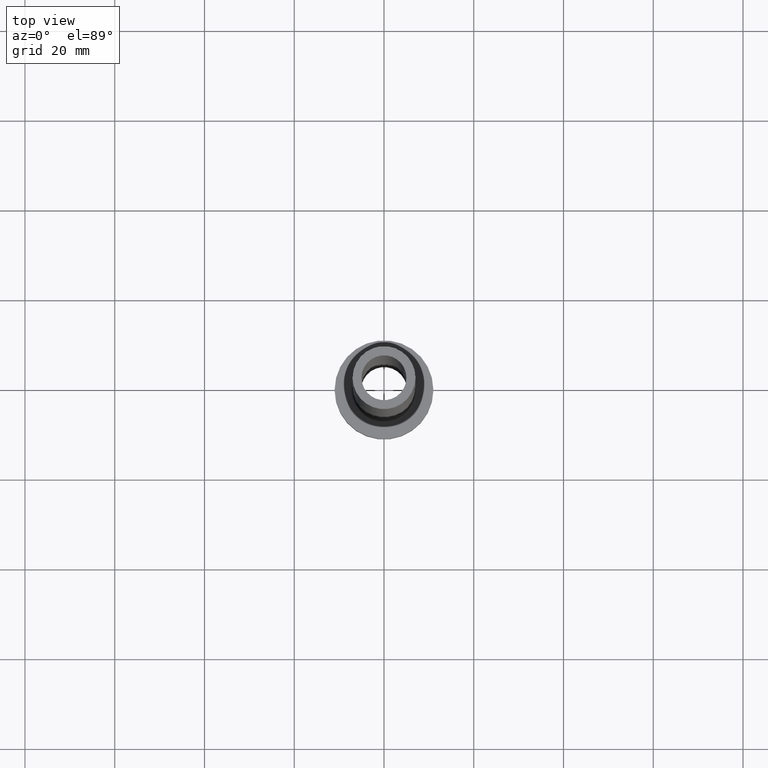
[diagram: clean part render]
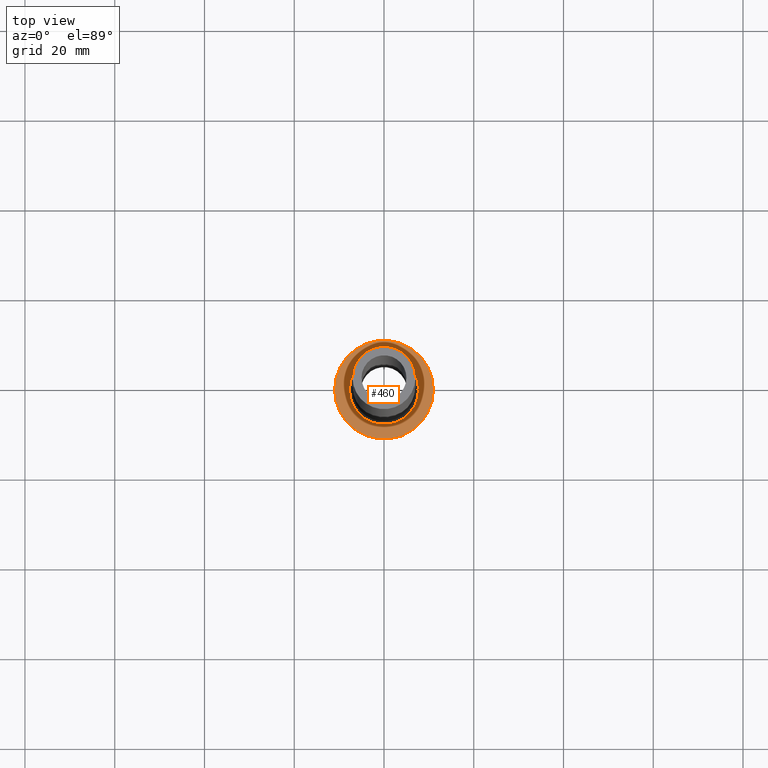
[diagram: same view with one face highlighted and labeled with its STEP entity id]
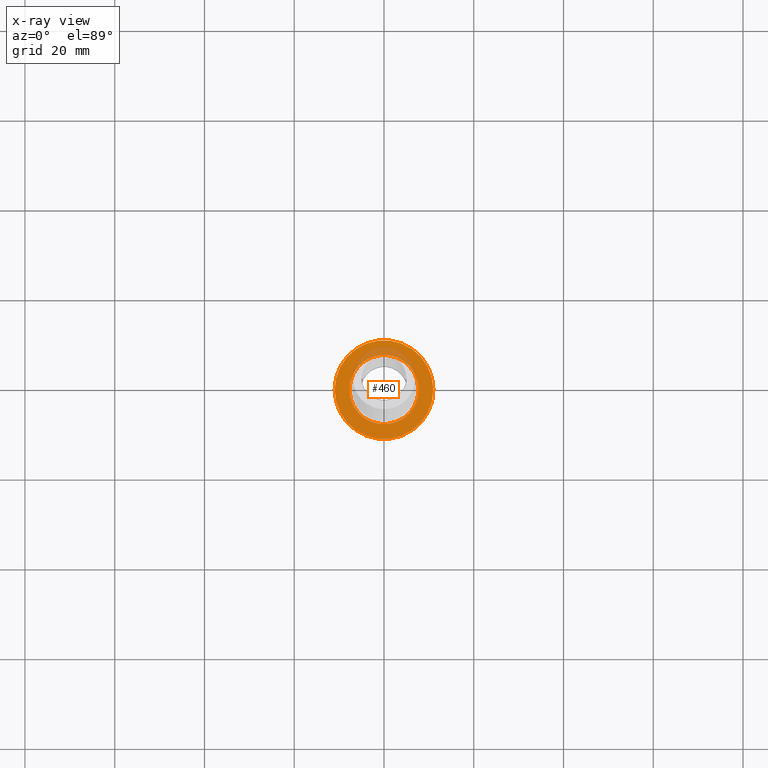
[diagram: x-ray of the same camera — body ghosted, the highlighted face saturated]
A machine part, top view. The second image highlights one B-rep face of the part: STEP entity #460.
The next image is the same camera in x-ray: the body ghosted, the highlighted face saturated — about 13% of this face is hidden behind the body in this view.
In plain terms, the highlighted planar face has unit normal (0, 0, 1).
Its self-contained STEP definition (entity closure, byte-faithful):
#22 = EDGE_CURVE ( 'NONE', #77, #301, #268, .T. ) ;
#23 = CARTESIAN_POINT ( 'NONE',  ( 0.000000000000000000, 0.000000000000000000, 7.000000000000000000 ) ) ;
#41 = ORIENTED_EDGE ( 'NONE', *, *, #287, .T. ) ;
#61 = AXIS2_PLACEMENT_3D ( 'NONE', #104, #391, #203 ) ;
#77 = VERTEX_POINT ( 'NONE', #397 ) ;
#89 = CARTESIAN_POINT ( 'NONE',  ( -11.00000000000000000, 0.000000000000000000, 7.000000000000000000 ) ) ;
#95 = DIRECTION ( 'NONE',  ( 1.000000000000000000, 0.000000000000000000, -0.000000000000000000 ) ) ;
#97 = CIRCLE ( 'NONE', #241, 11.00000000000000000 ) ;
#102 = ORIENTED_EDGE ( 'NONE', *, *, #22, .T. ) ;
#103 = VERTEX_POINT ( 'NONE', #89 ) ;
#104 = CARTESIAN_POINT ( 'NONE',  ( 0.000000000000000000, 0.000000000000000000, 7.000000000000000000 ) ) ;
#147 = VERTEX_POINT ( 'NONE', #420 ) ;
#149 = DIRECTION ( 'NONE',  ( 1.000000000000000000, 0.000000000000000000, 0.000000000000000000 ) ) ;
#173 = CARTESIAN_POINT ( 'NONE',  ( 0.000000000000000000, 0.000000000000000000, 7.000000000000000000 ) ) ;
#176 = DIRECTION ( 'NONE',  ( 1.000000000000000000, 0.000000000000000000, 0.000000000000000000 ) ) ;
#177 = DIRECTION ( 'NONE',  ( 1.000000000000000000, 0.000000000000000000, 0.000000000000000000 ) ) ;
#180 = ORIENTED_EDGE ( 'NONE', *, *, #189, .T. ) ;
#187 = EDGE_LOOP ( 'NONE', ( #347, #41 ) ) ;
#189 = EDGE_CURVE ( 'NONE', #301, #77, #407, .T. ) ;
#190 = DIRECTION ( 'NONE',  ( 0.000000000000000000, 0.000000000000000000, 1.000000000000000000 ) ) ;
#192 = DIRECTION ( 'NONE',  ( 0.000000000000000000, 0.000000000000000000, 1.000000000000000000 ) ) ;
#195 = AXIS2_PLACEMENT_3D ( 'NONE', #314, #461, #95 ) ;
#203 = DIRECTION ( 'NONE',  ( 1.000000000000000000, 0.000000000000000000, 0.000000000000000000 ) ) ;
#241 = AXIS2_PLACEMENT_3D ( 'NONE', #23, #190, #149 ) ;
#245 = CIRCLE ( 'NONE', #285, 11.00000000000000000 ) ;
#268 = CIRCLE ( 'NONE', #310, 7.700000000000001066 ) ;
#285 = AXIS2_PLACEMENT_3D ( 'NONE', #440, #192, #176 ) ;
#287 = EDGE_CURVE ( 'NONE', #147, #103, #245, .T. ) ;
#301 = VERTEX_POINT ( 'NONE', #331 ) ;
#308 = FACE_OUTER_BOUND ( 'NONE', #187, .T. ) ;
#310 = AXIS2_PLACEMENT_3D ( 'NONE', #173, #430, #177 ) ;
#314 = CARTESIAN_POINT ( 'NONE',  ( 0.000000000000000000, 0.000000000000000000, 7.000000000000000000 ) ) ;
#331 = CARTESIAN_POINT ( 'NONE',  ( -7.700000000000001066, 9.429780353434621002E-16, 7.000000000000006217 ) ) ;
#334 = FACE_BOUND ( 'NONE', #432, .T. ) ;
#347 = ORIENTED_EDGE ( 'NONE', *, *, #444, .T. ) ;
#391 = DIRECTION ( 'NONE',  ( -0.000000000000000000, -0.000000000000000000, -1.000000000000000000 ) ) ;
#397 = CARTESIAN_POINT ( 'NONE',  ( 7.700000000000001066, 0.000000000000000000, 7.000000000000006217 ) ) ;
#407 = CIRCLE ( 'NONE', #61, 7.700000000000001066 ) ;
#420 = CARTESIAN_POINT ( 'NONE',  ( 11.00000000000000000, 1.347111479062088405E-15, 7.000000000000000000 ) ) ;
#430 = DIRECTION ( 'NONE',  ( -0.000000000000000000, -0.000000000000000000, -1.000000000000000000 ) ) ;
#432 = EDGE_LOOP ( 'NONE', ( #102, #180 ) ) ;
#440 = CARTESIAN_POINT ( 'NONE',  ( 0.000000000000000000, 0.000000000000000000, 7.000000000000000000 ) ) ;
#444 = EDGE_CURVE ( 'NONE', #103, #147, #97, .T. ) ;
#452 = PLANE ( 'NONE',  #195 ) ;
#460 = ADVANCED_FACE ( 'NONE', ( #334, #308 ), #452, .T. ) ;
#461 = DIRECTION ( 'NONE',  ( 0.000000000000000000, 0.000000000000000000, 1.000000000000000000 ) ) ;